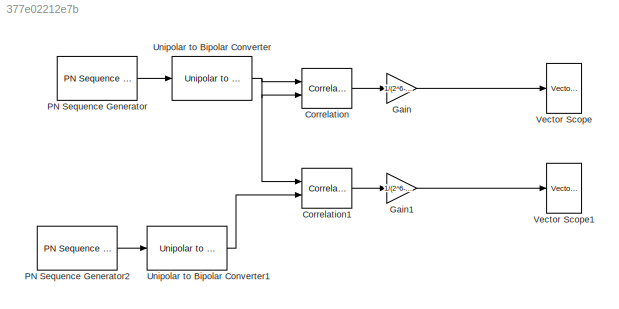
MODEL slx_377e02212e7b
KIND model
BLOCK [Reference] Correlation  REF=dspstat3/Correlation
  LockScale = off
  Ports = [2, 1]
  SourceBlock = dspstat3/Correlation
  SourceType = Correlation
  accumDataTypeStr = Inherit: Inherit via internal rule
  accumFracLength = 30
  accumLastDataTypeStr = Inherit: Inherit via internal rule
  accumMode = Inherit via internal rule
  accumWordLength = 32
  additionalParams = off
  allowOverrides = on
  domain = Time
  outputDataTypeStr = Inherit: Same as accumulator
  outputFracLength = 15
  outputLastDataTypeStr = Inherit: Same as accumulator
  outputMax = []
  outputMin = []
  outputMode = Same as accumulator
  outputWordLength = 16
  overflowMode = off
  prodOutputDataTypeStr = Inherit: Inherit via internal rule
  prodOutputFracLength = 30
  prodOutputLastDataTypeStr = Inherit: Inherit via internal rule
  prodOutputMode = Inherit via internal rule
  prodOutputWordLength = 32
  roundingMode = Floor
BLOCK [Reference] Correlation1  REF=dspstat3/Correlation
  LockScale = off
  Ports = [2, 1]
  SourceBlock = dspstat3/Correlation
  SourceType = Correlation
  accumDataTypeStr = Inherit: Inherit via internal rule
  accumFracLength = 30
  accumLastDataTypeStr = Inherit: Inherit via internal rule
  accumMode = Inherit via internal rule
  accumWordLength = 32
  additionalParams = off
  allowOverrides = on
  domain = Time
  outputDataTypeStr = Inherit: Same as accumulator
  outputFracLength = 15
  outputLastDataTypeStr = Inherit: Same as accumulator
  outputMax = []
  outputMin = []
  outputMode = Same as accumulator
  outputWordLength = 16
  overflowMode = off
  prodOutputDataTypeStr = Inherit: Inherit via internal rule
  prodOutputFracLength = 30
  prodOutputLastDataTypeStr = Inherit: Inherit via internal rule
  prodOutputMode = Inherit via internal rule
  prodOutputWordLength = 32
  roundingMode = Floor
BLOCK [Gain] Gain
  Gain = 1/(2^6-1)
  OutDataTypeStr = Inherit: Inherit via internal rule
  ParamDataTypeStr = Inherit: Inherit via internal rule
  SaturateOnIntegerOverflow = off
BLOCK [Gain] Gain1
  Gain = 1/(2^6-1)
  OutDataTypeStr = Inherit: Inherit via internal rule
  ParamDataTypeStr = Inherit: Inherit via internal rule
  SaturateOnIntegerOverflow = off
BLOCK [Reference] PN Sequence Generator  REF=commseqgen2/PN Sequence
Generator
  Ports = [0, 1]
  SourceBlock = commseqgen2/PN Sequence\nGenerator
  SourceType = PN Sequence Generator
  Ts = (10^-6)/(2^6-1)
  bitPackDataSigned = off
  bitPackedOutDType = double
  bitPackedOutputs = off
  frameBased = on
  ini_sta = [0 1 1 0 0 1]
  maxOutSize = [10 1]
  maxOutSizeMode = Dialog parameter
  numPackedBits = 8
  outBitMaskSource = Dialog parameter
  outDataType = double
  outVarSiz = off
  poly = [1 0 1 0 1 1 1]
  reset = off
  sampPerFrame = (2^6-1)
  shift = 0
BLOCK [Reference] PN Sequence Generator2  REF=commseqgen2/PN Sequence
Generator
  Ports = [0, 1]
  SourceBlock = commseqgen2/PN Sequence\nGenerator
  SourceType = PN Sequence Generator
  Ts = (10^-6)/(2^6-1)
  bitPackDataSigned = off
  bitPackedOutDType = double
  bitPackedOutputs = off
  frameBased = on
  ini_sta = [1 0 0 0 0 1]
  maxOutSize = [10 1]
  maxOutSizeMode = Dialog parameter
  numPackedBits = 8
  outBitMaskSource = Dialog parameter
  outDataType = double
  outVarSiz = off
  poly = [1 1 0 0 0 1 1]
  reset = off
  sampPerFrame = (2^6-1)
  shift = 0
BLOCK [Reference] Unipolar to Bipolar Converter  REF=commutil2/Unipolar to
Bipolar
Converter
  M = 2
  Ports = [1, 1]
  SourceBlock = commutil2/Unipolar to\nBipolar\nConverter
  SourceType = Unipolar to Bipolar Converter
  dataType = Inherit via internal rule
  polarity = Positive
BLOCK [Reference] Unipolar to Bipolar Converter1  REF=commutil2/Unipolar to
Bipolar
Converter
  M = 2
  Ports = [1, 1]
  SourceBlock = commutil2/Unipolar to\nBipolar\nConverter
  SourceType = Unipolar to Bipolar Converter
  dataType = Inherit via internal rule
  polarity = Positive
BLOCK [Reference] Vector Scope  REF=dspsnks4/Vector
Scope
  AxisGrid = on
  AxisLegend = off
  AxisProperties = off
  AxisZoom = off
  DisplayProperties = off
  Domain = Time
  FigPos = get(0,'defaultfigureposition')
  FrameNumber = on
  HorizSpan = 1
  InheritXIncr = on
  LineProperties = off
  Memory = off
  OpenScopeAtSimStart = on
  OpenScopeImmediately = off
  Ports = [1]
  ScopeProperties = on
  ShowPortLabels = off
  SourceBlock = dspsnks4/Vector\nScope
  SourceType = Vector Scope
  XAxisParamsVer = 6.9
  XIncr = 1
  XLabel = Time
  XLimit = Auto
  XMax = 1
  XMin = 0
  XRange = [0...Fs/2]
  XStart = 0
  XUnits = Hertz
  YLabel = Amplitude
  YMax = 10
  YMin = -10
  YUnits = dB
BLOCK [Reference] Vector Scope1  REF=dspsnks4/Vector
Scope
  AxisGrid = on
  AxisLegend = off
  AxisProperties = off
  AxisZoom = off
  DisplayProperties = off
  Domain = Time
  FigPos = get(0,'defaultfigureposition')
  FrameNumber = on
  HorizSpan = 1
  InheritXIncr = on
  LineProperties = off
  Memory = off
  OpenScopeAtSimStart = on
  OpenScopeImmediately = off
  Ports = [1]
  ScopeProperties = on
  ShowPortLabels = off
  SourceBlock = dspsnks4/Vector\nScope
  SourceType = Vector Scope
  XAxisParamsVer = 6.9
  XIncr = 1
  XLabel = Time
  XLimit = Auto
  XMax = 1
  XMin = 0
  XRange = [0...Fs/2]
  XStart = 0
  XUnits = Hertz
  YLabel = Amplitude
  YMax = 10
  YMin = -10
  YUnits = dB
LINE Correlation1:1 -> Gain1:1
LINE Correlation:1 -> Gain:1
LINE Gain1:1 -> Vector Scope1:1
LINE Gain:1 -> Vector Scope:1
LINE PN Sequence Generator2:1 -> Unipolar to Bipolar Converter1:1
LINE PN Sequence Generator:1 -> Unipolar to Bipolar Converter:1
LINE Unipolar to Bipolar Converter1:1 -> Correlation1:2
NET Unipolar to Bipolar Converter:1 -> Correlation1:1, Correlation:1, Correlation:2
note: NET lines group one-source signal fan-out (src -> all destinations, sorted); 1:1 wires keep LINE
